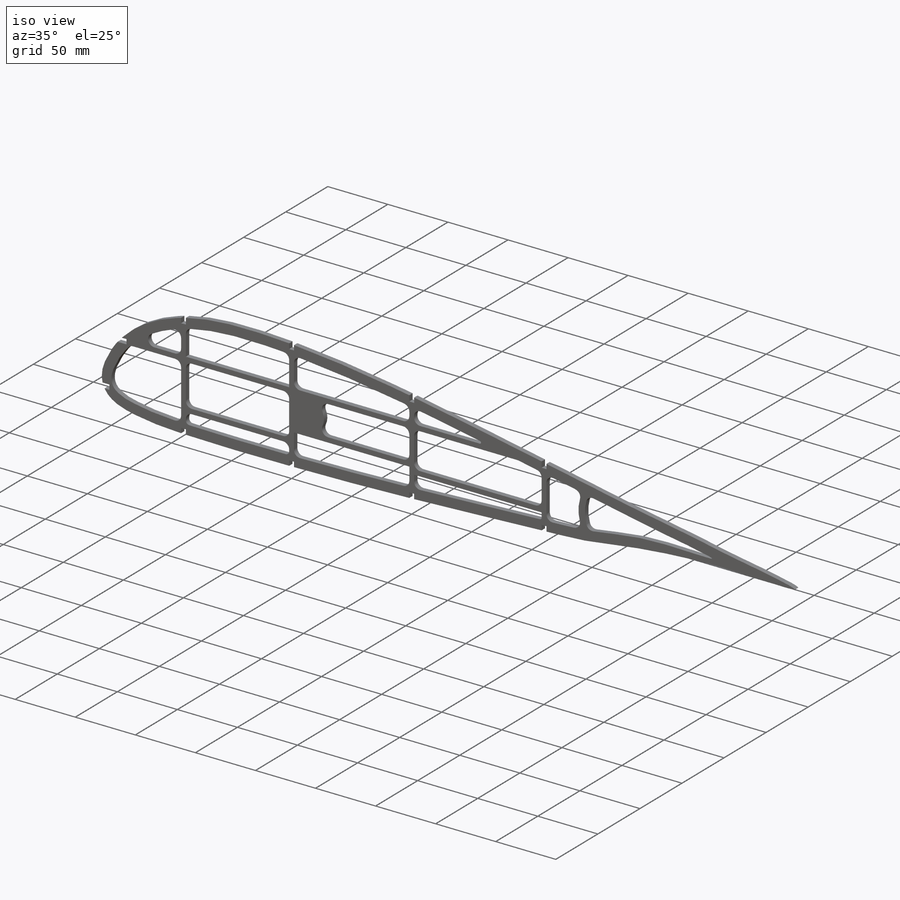
[diagram: iso view]
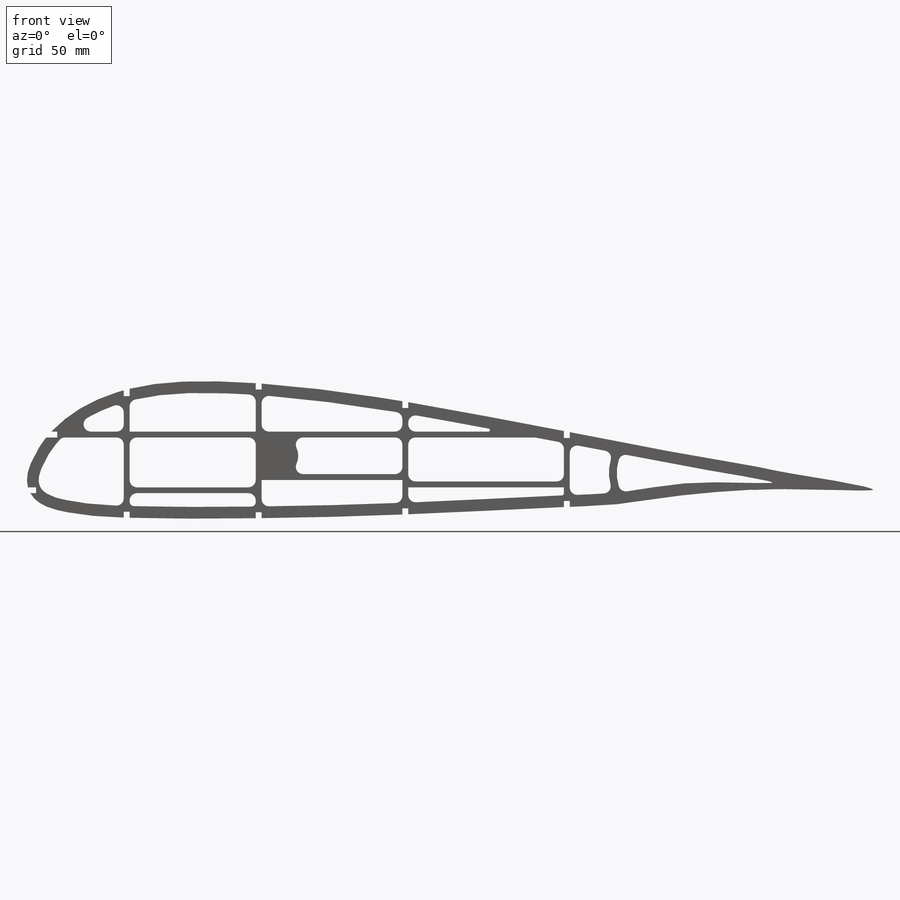
[diagram: front view]
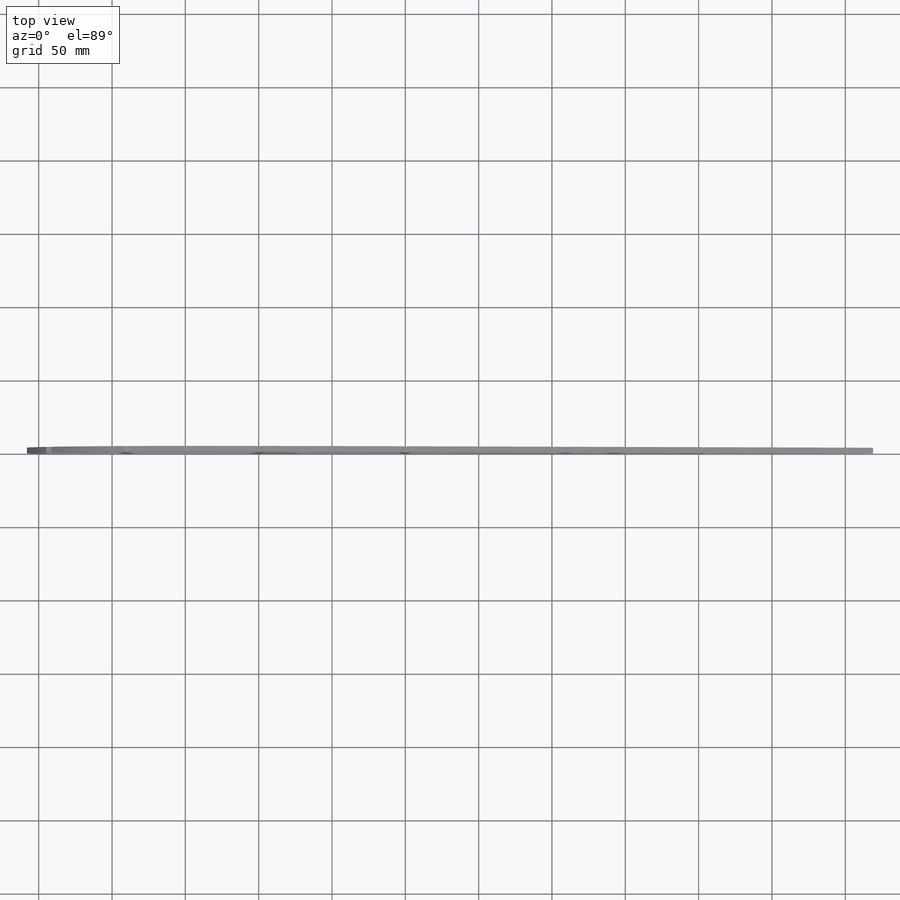
[diagram: top view]
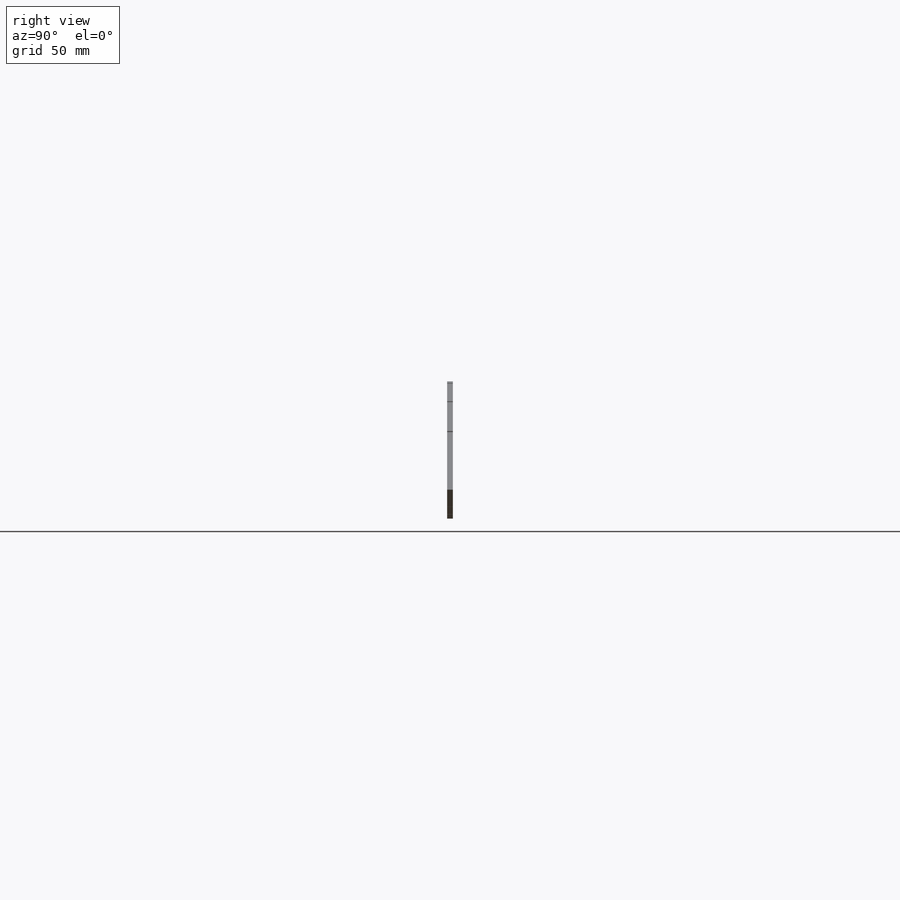
[diagram: right view]
SOLIDWORKS PART (.sldprt)
format: sldprt  version: not decoded by parser v0  size: 870,912 bytes
history: native  units: mm
features: fillet x24, sketch x4, extrude x2, cut_extrude x2, material x1 (+13 scaffold rows collapsed)
feature tree (46):
  scaffold x13  (default folders/planes/origin — collapsed)
  material  "Cedar"
  sketch  "Sketch11"  dims[c1.D3=32.0mm c1.D11=5.0mm c1.D12=5.0mm c1.D13=28.8mm c1.D19=~1038.448062mm c1.D20=~1038.448062mm c2.D13=5.0mm c2.D35=5.0mm c2.D36=34.0mm c2.D37=25.0mm c2.D38=30.0mm c3.D35=5.0mm c3.D36=5.0mm c3.D38=5.0mm c3.D42=5.0mm c3.D44=30.0mm c3.D45=30.0mm c4.D44=30.0mm c4.D46=30.0mm c4.D1=4.0mm c4.D2=2.0mm c4.D4=2.0mm c4.D5=4.0mm c4.D6=2.0mm c4.D7=4.0mm c4.D8=2.0mm c4.D9=4.0mm c4.D10=2.0mm c4.D14=60.0mm c4.D15=150.0mm c4.D16=250.0mm c4.D17=140.0mm c4.D18=2.0mm c4.D19=79.616mm c5.D9=2.0mm c5.D19=2.0mm c5.D20=4.0mm c5.D21=4.0mm c5.D22=4.0mm c5.D23=4.0mm c5.D24=4.0mm c5.D25=0.1mm c5.D26=0.1mm c5.D27=4.0mm c5.D28=0.1mm c5.D29=4.0mm c5.D30=0.1mm c5.D31=4.0mm c5.D32=~500.144153mm c5.D33=2.0mm c5.D34=~1.650019mm c5.D35=~19.004713mm c6.D34=2.0mm c6.D35=~4.089875mm c6.D39=4.0mm c6.D40=4.0mm c6.D41=4.0mm c6.D43=90.0mm c6.D44=~8.650566mm c7.D43=103.0mm c7.D45=5.0mm c7.D30=4.0mm c7.D28=4.0mm c7.D26=4.0mm c7.D25=4.0mm c7.D27=4.0mm c7.D1=5.0mm c7.D18=8.0mm]
  extrude  "Boss-Extrude41"  Depth=4mm
  sketch  "Sketch13"
  cut_extrude  "Cut-Extrude3"  [1 undecoded]
  sketch  "Sketch18"  dims[D1=0.0mm]
  extrude  "Boss-Extrude52"  [1 undecoded]
  sketch  "Sketch19"
  cut_extrude  "Cut-Extrude4"  [1 undecoded]
  fillet  "Fillet1"  Radius=5mm
  fillet  "Fillet2"  Radius=5mm
  fillet  "Fillet3"  Radius=5mm
  fillet  "Fillet4"  Radius=5mm
  fillet  "Fillet5"  Radius=1.5mm
  fillet  "Fillet6"  Radius=5mm
  fillet  "Fillet8"  Radius=5mm
  fillet  "Fillet9"  Radius=5mm
  fillet  "Fillet10"  Radius=3mm
  fillet  "Fillet11"  Radius=5mm
  fillet  "Fillet12"  Radius=5mm
  fillet  "Fillet13"  Radius=5mm
  fillet  "Fillet14"  Radius=1mm
  fillet  "Fillet15"  Radius=5mm
  fillet  "Fillet16"  Radius=5mm
  fillet  "Fillet17"  Radius=5mm
  fillet  "Fillet20"  Radius=3mm
  fillet  "Fillet21"  Radius=5mm
  fillet  "Fillet22"  Radius=5mm
  fillet  "Fillet23"  Radius=5mm
  fillet  "Fillet24"  Radius=5mm
  fillet  "Fillet25"  Radius=5mm
  fillet  "Fillet26"  Radius=5mm
  fillet  "Fillet27"  Radius=5mm
decode coverage: 27 of 32 modeling features carry decoded parameters
note: ~ marks probable driven/reference dimensions
note: 3 parameter values undecoded
summary: no parameter record found for 3 features
note: suppression state not decoded; provenance and decode notes live in map.json
